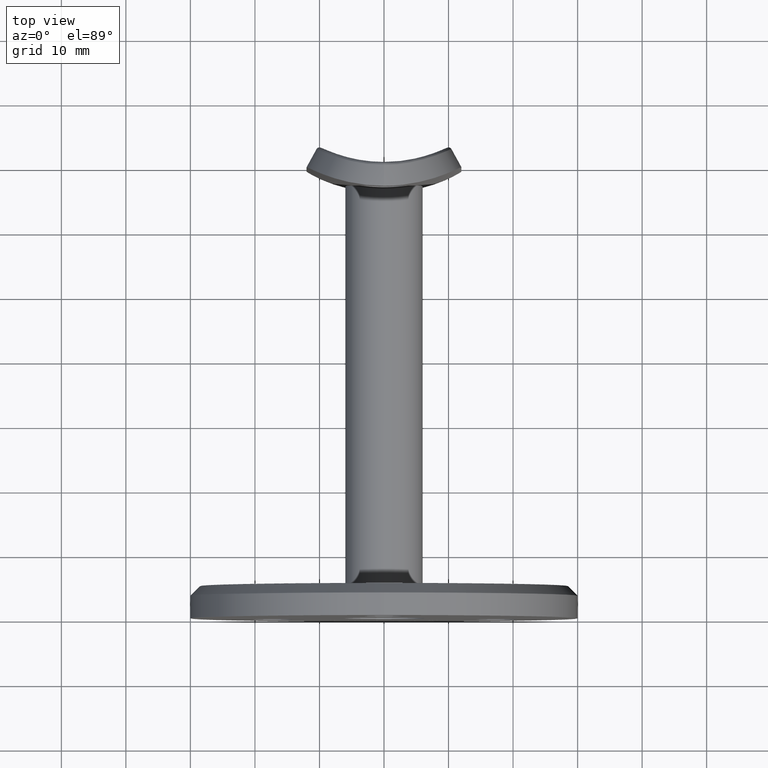
[diagram: clean part render]
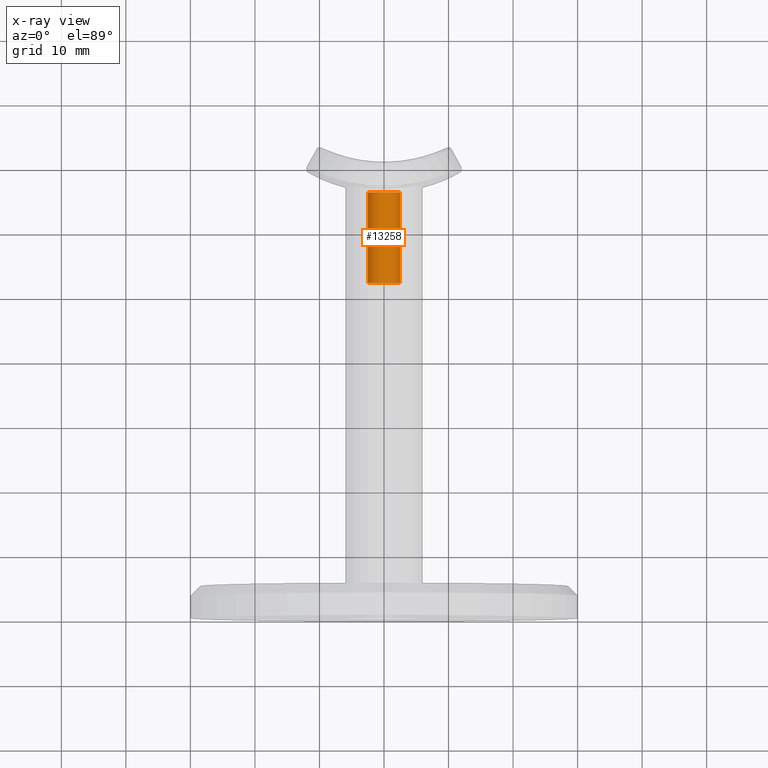
[diagram: x-ray — body ghosted, one internal face saturated and labeled with its STEP entity id]
A machine part, top view, then the same camera in x-ray: the body is ghosted and one INTERNAL B-rep face — a face not visible from any outside direction — is saturated and labeled: STEP entity #13258.
In plain terms, the highlighted cylindrical surface (bore or boss wall) has radius 2.5 mm, axis along (0, 1, 0).
Its self-contained STEP definition (entity closure, byte-faithful):
#38 = DIRECTION ( 'NONE',  ( 0.000000000000000000, 1.000000000000000000, 0.000000000000000000 ) ) ;
#168 = DIRECTION ( 'NONE',  ( 0.000000000000000000, 0.000000000000000000, 1.000000000000000000 ) ) ;
#215 = VERTEX_POINT ( 'NONE', #10830 ) ;
#1552 = DIRECTION ( 'NONE',  ( 0.000000000000000000, 1.000000000000000000, 0.000000000000000000 ) ) ;
#1843 = CARTESIAN_POINT ( 'NONE',  ( 0.000000000000000000, 46.99999999999999289, 0.000000000000000000 ) ) ;
#2838 = CARTESIAN_POINT ( 'NONE',  ( 0.000000000000000000, 61.00000000000002132, 0.000000000000000000 ) ) ;
#3070 = EDGE_LOOP ( 'NONE', ( #12884 ) ) ;
#4479 = ORIENTED_EDGE ( 'NONE', *, *, #7259, .F. ) ;
#4822 = EDGE_LOOP ( 'NONE', ( #4479 ) ) ;
#4924 = AXIS2_PLACEMENT_3D ( 'NONE', #1843, #10964, #13406 ) ;
#5933 = CIRCLE ( 'NONE', #10517, 2.499999999999992895 ) ;
#6120 = AXIS2_PLACEMENT_3D ( 'NONE', #15532, #38, #168 ) ;
#6689 = FACE_OUTER_BOUND ( 'NONE', #3070, .T. ) ;
#6780 = EDGE_CURVE ( 'NONE', #215, #215, #5933, .T. ) ;
#6960 = CARTESIAN_POINT ( 'NONE',  ( 0.000000000000000000, 46.99999999999999289, 2.499999999999996003 ) ) ;
#7259 = EDGE_CURVE ( 'NONE', #9370, #9370, #7316, .T. ) ;
#7316 = CIRCLE ( 'NONE', #4924, 2.499999999999996003 ) ;
#9370 = VERTEX_POINT ( 'NONE', #6960 ) ;
#10517 = AXIS2_PLACEMENT_3D ( 'NONE', #2838, #1552, #11947 ) ;
#10830 = CARTESIAN_POINT ( 'NONE',  ( 0.000000000000000000, 61.00000000000002132, 2.499999999999992895 ) ) ;
#10964 = DIRECTION ( 'NONE',  ( 0.000000000000000000, 1.000000000000000000, 0.000000000000000000 ) ) ;
#11947 = DIRECTION ( 'NONE',  ( 0.000000000000000000, 0.000000000000000000, 1.000000000000000000 ) ) ;
#12884 = ORIENTED_EDGE ( 'NONE', *, *, #6780, .T. ) ;
#13258 = ADVANCED_FACE ( 'NONE', ( #6689, #14855 ), #15819, .F. ) ;
#13406 = DIRECTION ( 'NONE',  ( 0.000000000000000000, 0.000000000000000000, 1.000000000000000000 ) ) ;
#14855 = FACE_OUTER_BOUND ( 'NONE', #4822, .T. ) ;
#15532 = CARTESIAN_POINT ( 'NONE',  ( 0.000000000000000000, 61.99999999999999289, 0.000000000000000000 ) ) ;
#15819 = CYLINDRICAL_SURFACE ( 'NONE', #6120, 2.499999999999992895 ) ;